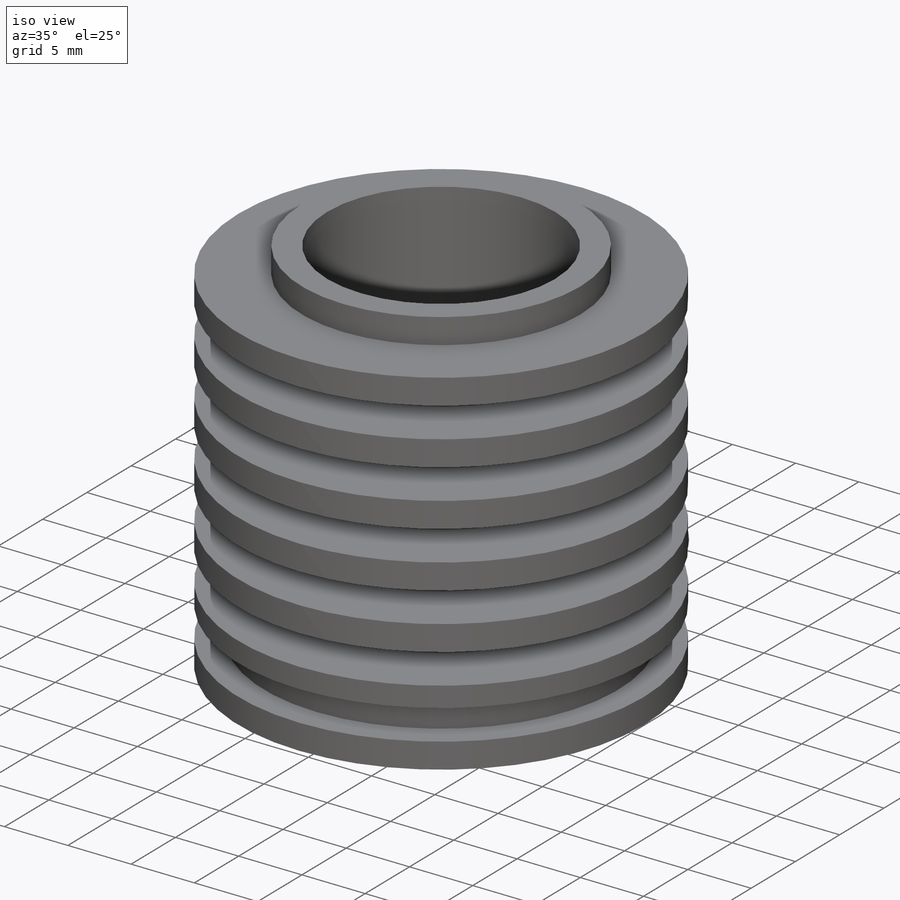
[diagram: iso view]
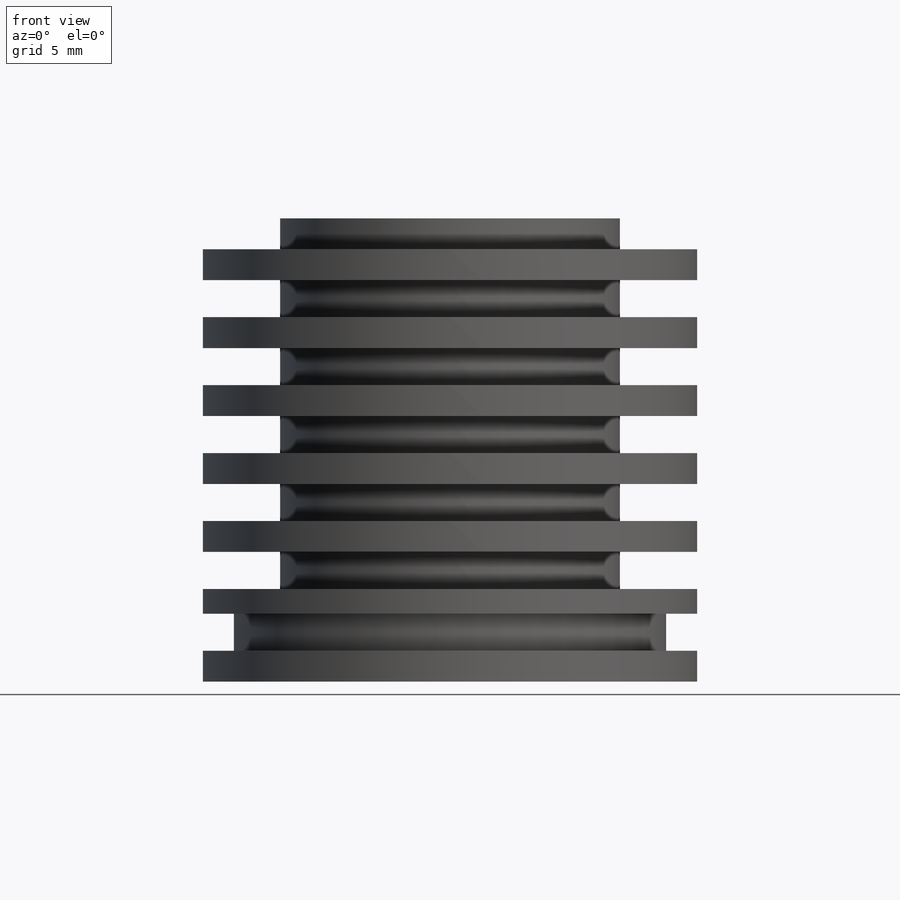
[diagram: front view]
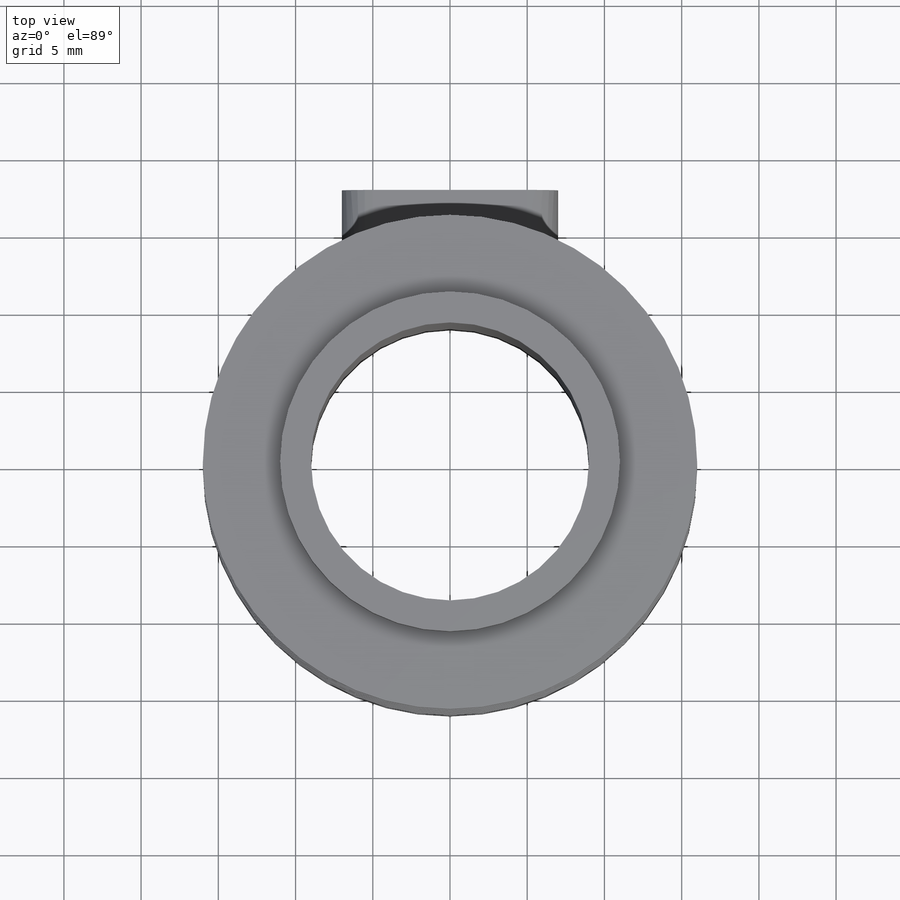
[diagram: top view]
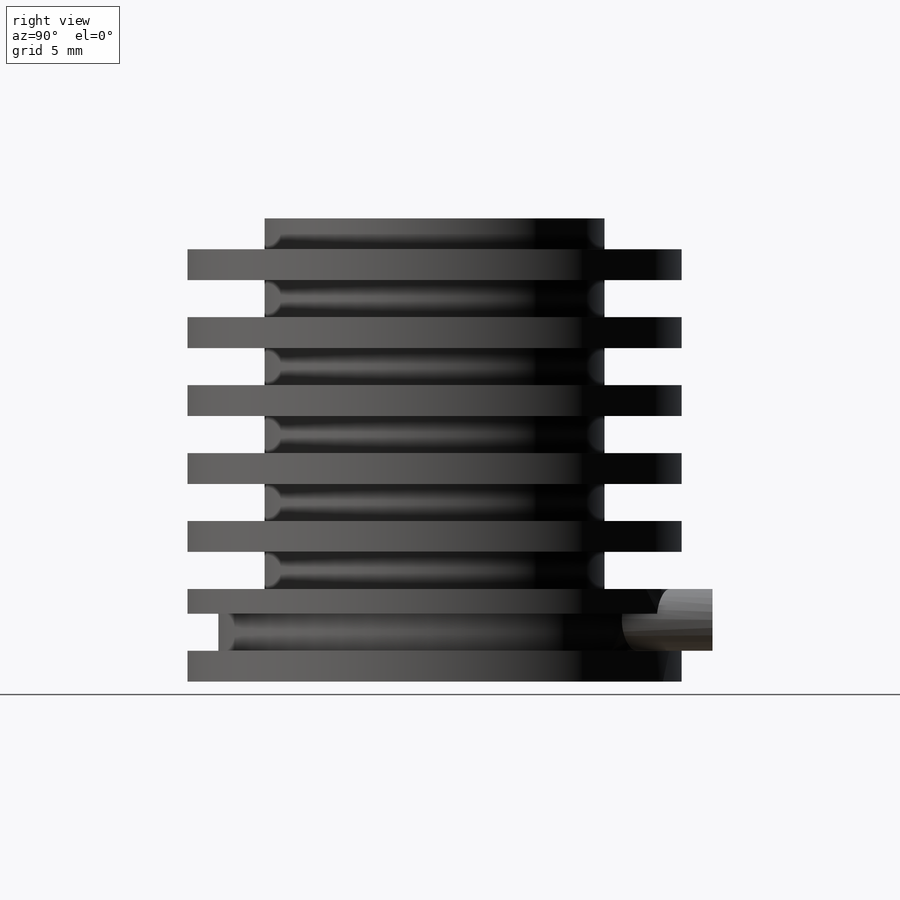
[diagram: right view]
SOLIDWORKS PART (.sldprt)
format: sldprt  version: not decoded by parser v0  size: 334,848 bytes
history: native  units: mm
features: sketch x11, cut_extrude x5, plane x4, extrude x3, material x1, pattern_linear x1, hole x1, pattern_circular x1 (+12 scaffold rows collapsed)
feature tree (39):
  scaffold x12  (default folders/planes/origin — collapsed)
  material  "Material <not specified>"
  sketch  "Sketch1"  dims[D1=22.0mm]
  extrude  "Boss-Extrude1"  Depth=30mm
  sketch  "Sketch2"  dims[D1=18.0mm]
  cut_extrude  "Cut-Extrude1"  Depth=30mm
  plane  "Plane1"  Offset=2mm
  sketch  "Sketch3"  dims[D1=32.0mm]
  extrude  "Boss-Extrude2"  [1 undecoded]
  plane  "Plane2"  Offset=2mm
  sketch  "Sketch4"  dims[D1=32.0mm D2=22.0mm]
  cut_extrude  "Cut-Extrude2"  Depth=2.4mm
  pattern_linear  "LPattern1"  Count1=5 Count2=1 Spacing1=4.4mm Spacing2=50mm
  plane  "Plane3"  Offset=2mm
  sketch  "Sketch5"  dims[D1=28.0mm D2=32.0mm]
  cut_extrude  "Cut-Extrude3"  Depth=2.4mm
  sketch  "Sketch6"  dims[D1=0.0mm]
  cut_extrude  "Cut-Extrude4"  Depth=46.4mm
  plane  "Plane4"  Offset=18mm
  sketch  "Sketch7"  dims[c1.D3=2.0mm c1.D1=2.0mm c1.D2=4.0mm c2.D3=14.0mm c2.D4=1.0mm]
  extrude  "Boss-Extrude3"  [1 undecoded]
  sketch  "Sketch8"
  cut_extrude  "Cut-Extrude5"  [1 undecoded]
  sketch  "Sketch9"  dims[c1.D1=23.0mm c1.D2=~17.959819mm c2.D2=45.0deg]
  hole  "Tap Drill for M2x0.4 Tap2"  Diameter=1.6mm Depth=5.5mm
  sketch  "Sketch16"
  sketch  "Sketch15"  dims[hole-wizard template sketch: 47 standard entries collapsed; hole parameters kept: c15.Hole Depth=5.5mm c15.D3=~14.816244mm c15.Drill Angle=118.0deg]
  pattern_circular  "CirPattern1"  Count=4 Angle=360deg
decode coverage: 17 of 22 modeling features carry decoded parameters
note: ~ marks probable driven/reference dimensions
note: 3 parameter values undecoded
summary: no parameter record found for 3 features
note: suppression state not decoded; provenance and decode notes live in map.json
